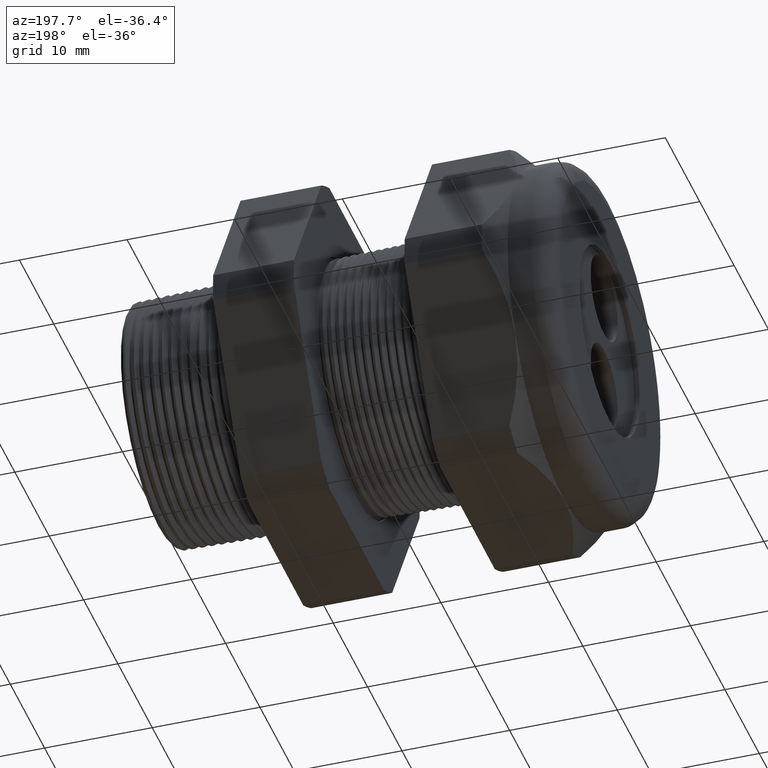
[diagram: clean part render]
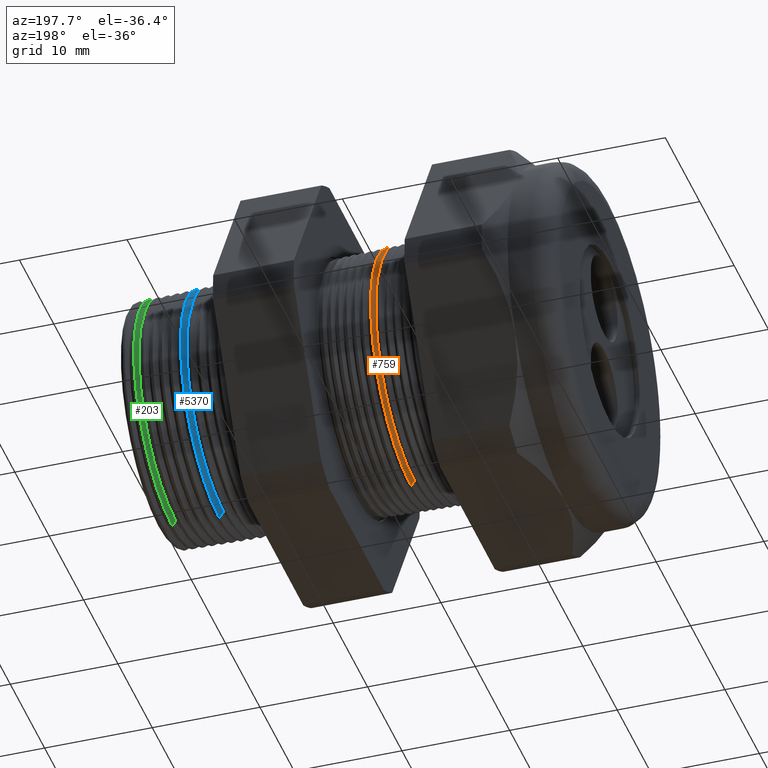
[diagram: same view with three faces highlighted in distinct colors, each labeled with its STEP entity id]
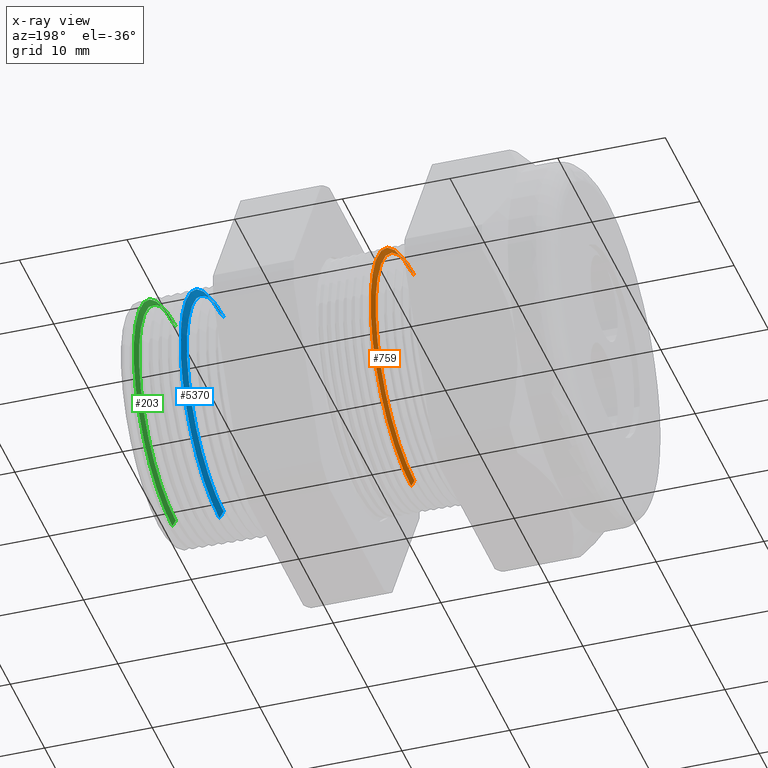
[diagram: x-ray of the same camera — body ghosted, the three highlighted faces saturated]
A machine part, auxiliary view with three faces highlighted in distinct colors.
The next image is the same camera in x-ray (body ghosted, the three faces saturated) — at least one of them is partly hidden behind the body in this view.
Their STEP definitions:

[orange] entity #759 — the highlighted conical surface has half-angle 58.5 deg.
#705 = EDGE_LOOP ( 'NONE', ( #760, #764, #767, #770 ) ) ;
#759 = ADVANCED_FACE ( 'NONE', ( #2559 ), #2558, .T. ) ;
#760 = ORIENTED_EDGE ( 'NONE', *, *, #761, .T. ) ;
#761 = EDGE_CURVE ( 'NONE', #762, #763, #2557, .T. ) ;
#762 = VERTEX_POINT ( 'NONE', #2548 ) ;
#763 = VERTEX_POINT ( 'NONE', #2547 ) ;
#764 = ORIENTED_EDGE ( 'NONE', *, *, #765, .T. ) ;
#765 = EDGE_CURVE ( 'NONE', #763, #766, #2546, .T. ) ;
#766 = VERTEX_POINT ( 'NONE', #2542 ) ;
#767 = ORIENTED_EDGE ( 'NONE', *, *, #768, .T. ) ;
#768 = EDGE_CURVE ( 'NONE', #766, #769, #2541, .T. ) ;
#769 = VERTEX_POINT ( 'NONE', #2536 ) ;
#770 = ORIENTED_EDGE ( 'NONE', *, *, #771, .F. ) ;
#771 = EDGE_CURVE ( 'NONE', #762, #769, #2535, .T. ) ;
#2532 = DIRECTION ( 'NONE',  ( 0.5224985647159348100, 0.0000000000000000000, -0.8526401643541007300 ) ) ;
#2533 = VECTOR ( 'NONE', #2532, 39.37007874015748900 ) ;
#2534 = CARTESIAN_POINT ( 'NONE',  ( -0.8165405736958172300, 0.0000000000000000000, -0.4446307351718083400 ) ) ;
#2535 = LINE ( 'NONE', #2534, #2533 ) ;
#2536 = CARTESIAN_POINT ( 'NONE',  ( -0.8043001372766740400, 5.689774081997992500E-017, -0.4646053119935833500 ) ) ;
#2537 = DIRECTION ( 'NONE',  ( 0.0000000000000000000, 0.0000000000000000000, -1.000000000000000000 ) ) ;
#2538 = DIRECTION ( 'NONE',  ( -1.000000000000000000, 0.0000000000000000000, 0.0000000000000000000 ) ) ;
#2539 = CARTESIAN_POINT ( 'NONE',  ( -0.8043001372766740400, 0.0000000000000000000, 0.0000000000000000000 ) ) ;
#2540 = AXIS2_PLACEMENT_3D ( 'NONE', #2539, #2538, #2537 ) ;
#2541 = CIRCLE ( 'NONE', #2540, 0.4646053119935832900 ) ;
#2542 = CARTESIAN_POINT ( 'NONE',  ( -0.8043001372766740400, 0.0000000000000000000, 0.4646053119935833500 ) ) ;
#2543 = DIRECTION ( 'NONE',  ( 0.5224985647159348100, 1.044183048100722500E-016, 0.8526401643541007300 ) ) ;
#2544 = VECTOR ( 'NONE', #2543, 39.37007874015748900 ) ;
#2545 = CARTESIAN_POINT ( 'NONE',  ( -0.8165405736958172300, 5.445156066306895900E-017, 0.4446307351718083400 ) ) ;
#2546 = LINE ( 'NONE', #2545, #2544 ) ;
#2547 = CARTESIAN_POINT ( 'NONE',  ( -0.8165405736958172300, 0.0000000000000000000, 0.4446307351718083400 ) ) ;
#2548 = CARTESIAN_POINT ( 'NONE',  ( -0.8165405736958172300, 5.571220089116329200E-017, -0.4446307351718083400 ) ) ;
#2549 = DIRECTION ( 'NONE',  ( 0.0000000000000000000, 0.0000000000000000000, -1.000000000000000000 ) ) ;
#2550 = DIRECTION ( 'NONE',  ( 1.000000000000000000, 0.0000000000000000000, 0.0000000000000000000 ) ) ;
#2551 = CARTESIAN_POINT ( 'NONE',  ( -0.8165405736958172300, 0.0000000000000000000, 0.0000000000000000000 ) ) ;
#2552 = AXIS2_PLACEMENT_3D ( 'NONE', #2551, #2550, #2549 ) ;
#2553 = DIRECTION ( 'NONE',  ( 0.0000000000000000000, 0.0000000000000000000, -1.000000000000000000 ) ) ;
#2554 = DIRECTION ( 'NONE',  ( 1.000000000000000000, 0.0000000000000000000, 0.0000000000000000000 ) ) ;
#2555 = CARTESIAN_POINT ( 'NONE',  ( -0.8165405736958172300, 0.0000000000000000000, 0.0000000000000000000 ) ) ;
#2556 = AXIS2_PLACEMENT_3D ( 'NONE', #2555, #2554, #2553 ) ;
#2557 = CIRCLE ( 'NONE', #2552, 0.4446307351718083400 ) ;
#2558 = CONICAL_SURFACE ( 'NONE', #2556, 0.4446307351718083400, 1.021017612416699200 ) ;
#2559 = FACE_OUTER_BOUND ( 'NONE', #705, .T. ) ;

[blue] entity #5370 — the highlighted conical surface has half-angle 58.5 deg.
#40 = VERTEX_POINT ( 'NONE', #1440 ) ;
#94 = EDGE_CURVE ( 'NONE', #5545, #103, #1524, .T. ) ;
#103 = VERTEX_POINT ( 'NONE', #1574 ) ;
#1440 = CARTESIAN_POINT ( 'NONE',  ( -0.1184707356790752100, 5.316384437367407500E-017, -0.4212184895733915900 ) ) ;
#1521 = DIRECTION ( 'NONE',  ( 0.5224985647159347000, 1.044183048100722800E-016, 0.8526401643541008400 ) ) ;
#1522 = VECTOR ( 'NONE', #1521, 39.37007874015748100 ) ;
#1523 = CARTESIAN_POINT ( 'NONE',  ( -0.1184707356790752100, 5.158438749977368000E-017, 0.4212184895733915900 ) ) ;
#1524 = LINE ( 'NONE', #1523, #1522 ) ;
#1574 = CARTESIAN_POINT ( 'NONE',  ( -0.1031346857808554700, 0.0000000000000000000, 0.4462446484736953300 ) ) ;
#4311 = CARTESIAN_POINT ( 'NONE',  ( -0.1031346857808554700, 5.464920803899467900E-017, -0.4462446484736953300 ) ) ;
#4370 = DIRECTION ( 'NONE',  ( 0.0000000000000000000, 0.0000000000000000000, -1.000000000000000000 ) ) ;
#4371 = DIRECTION ( 'NONE',  ( 1.000000000000000000, 0.0000000000000000000, 0.0000000000000000000 ) ) ;
#4372 = AXIS2_PLACEMENT_3D ( 'NONE', #4375, #4371, #4370 ) ;
#4373 = CONICAL_SURFACE ( 'NONE', #4372, 0.4212184895733915900, 1.021017612416699400 ) ;
#4374 = CIRCLE ( 'NONE', #4437, 0.4212184895733915900 ) ;
#4375 = CARTESIAN_POINT ( 'NONE',  ( -0.1184707356790752100, 0.0000000000000000000, 0.0000000000000000000 ) ) ;
#4376 = FACE_OUTER_BOUND ( 'NONE', #5378, .T. ) ;
#4434 = DIRECTION ( 'NONE',  ( 0.0000000000000000000, 0.0000000000000000000, -1.000000000000000000 ) ) ;
#4435 = DIRECTION ( 'NONE',  ( 1.000000000000000000, 0.0000000000000000000, 0.0000000000000000000 ) ) ;
#4436 = CARTESIAN_POINT ( 'NONE',  ( -0.1184707356790752100, 0.0000000000000000000, 0.0000000000000000000 ) ) ;
#4437 = AXIS2_PLACEMENT_3D ( 'NONE', #4436, #4435, #4434 ) ;
#4768 = CARTESIAN_POINT ( 'NONE',  ( -0.1184707356790752100, 0.0000000000000000000, 0.4212184895733915900 ) ) ;
#4788 = DIRECTION ( 'NONE',  ( 0.5224985647159347000, 0.0000000000000000000, -0.8526401643541008400 ) ) ;
#4789 = VECTOR ( 'NONE', #4788, 39.37007874015748100 ) ;
#4790 = CARTESIAN_POINT ( 'NONE',  ( -0.1184707356790752100, 0.0000000000000000000, -0.4212184895733915900 ) ) ;
#4791 = LINE ( 'NONE', #4790, #4789 ) ;
#4827 = DIRECTION ( 'NONE',  ( 0.0000000000000000000, 0.0000000000000000000, -1.000000000000000000 ) ) ;
#4828 = DIRECTION ( 'NONE',  ( -1.000000000000000000, 0.0000000000000000000, 0.0000000000000000000 ) ) ;
#4829 = CARTESIAN_POINT ( 'NONE',  ( -0.1031346857808554700, 0.0000000000000000000, 0.0000000000000000000 ) ) ;
#4830 = AXIS2_PLACEMENT_3D ( 'NONE', #4829, #4828, #4827 ) ;
#4831 = CIRCLE ( 'NONE', #4830, 0.4462446484736953300 ) ;
#5315 = ORIENTED_EDGE ( 'NONE', *, *, #5595, .T. ) ;
#5349 = VERTEX_POINT ( 'NONE', #4311 ) ;
#5370 = ADVANCED_FACE ( 'NONE', ( #4376 ), #4373, .T. ) ;
#5371 = EDGE_CURVE ( 'NONE', #40, #5545, #4374, .T. ) ;
#5375 = ORIENTED_EDGE ( 'NONE', *, *, #5568, .F. ) ;
#5378 = EDGE_LOOP ( 'NONE', ( #5382, #5390, #5315, #5375 ) ) ;
#5382 = ORIENTED_EDGE ( 'NONE', *, *, #5371, .T. ) ;
#5390 = ORIENTED_EDGE ( 'NONE', *, *, #94, .T. ) ;
#5545 = VERTEX_POINT ( 'NONE', #4768 ) ;
#5568 = EDGE_CURVE ( 'NONE', #40, #5349, #4791, .T. ) ;
#5595 = EDGE_CURVE ( 'NONE', #103, #5349, #4831, .T. ) ;

[green] entity #203 — the highlighted conical surface has half-angle 58.5 deg.
#135 = VERTEX_POINT ( 'NONE', #1631 ) ;
#190 = EDGE_CURVE ( 'NONE', #211, #135, #1716, .T. ) ;
#191 = ORIENTED_EDGE ( 'NONE', *, *, #192, .F. ) ;
#192 = EDGE_CURVE ( 'NONE', #207, #135, #1712, .T. ) ;
#203 = ADVANCED_FACE ( 'NONE', ( #1754 ), #1753, .T. ) ;
#204 = EDGE_LOOP ( 'NONE', ( #205, #209, #212, #191 ) ) ;
#205 = ORIENTED_EDGE ( 'NONE', *, *, #206, .T. ) ;
#206 = EDGE_CURVE ( 'NONE', #207, #208, #1747, .T. ) ;
#207 = VERTEX_POINT ( 'NONE', #1743 ) ;
#208 = VERTEX_POINT ( 'NONE', #1742 ) ;
#209 = ORIENTED_EDGE ( 'NONE', *, *, #210, .T. ) ;
#210 = EDGE_CURVE ( 'NONE', #208, #211, #1741, .T. ) ;
#211 = VERTEX_POINT ( 'NONE', #1737 ) ;
#212 = ORIENTED_EDGE ( 'NONE', *, *, #190, .T. ) ;
#1631 = CARTESIAN_POINT ( 'NONE',  ( 0.06910148289796844100, 5.409687239479051700E-017, -0.4417344856692956300 ) ) ;
#1709 = DIRECTION ( 'NONE',  ( 0.5224985647159347000, 0.0000000000000000000, -0.8526401643541008400 ) ) ;
#1710 = VECTOR ( 'NONE', #1709, 39.37007874015748100 ) ;
#1711 = CARTESIAN_POINT ( 'NONE',  ( 0.05652926432092481000, 0.0000000000000000000, -0.4212184895733915900 ) ) ;
#1712 = LINE ( 'NONE', #1711, #1710 ) ;
#1713 = DIRECTION ( 'NONE',  ( 0.0000000000000000000, 0.0000000000000000000, -1.000000000000000000 ) ) ;
#1714 = DIRECTION ( 'NONE',  ( -1.000000000000000000, 0.0000000000000000000, 0.0000000000000000000 ) ) ;
#1715 = AXIS2_PLACEMENT_3D ( 'NONE', #1722, #1714, #1713 ) ;
#1716 = CIRCLE ( 'NONE', #1715, 0.4417344856692956300 ) ;
#1722 = CARTESIAN_POINT ( 'NONE',  ( 0.06910148289796844100, 0.0000000000000000000, 0.0000000000000000000 ) ) ;
#1737 = CARTESIAN_POINT ( 'NONE',  ( 0.06910148289796844100, 0.0000000000000000000, 0.4417344856692956300 ) ) ;
#1738 = DIRECTION ( 'NONE',  ( 0.5224985647159347000, 1.044183048100722800E-016, 0.8526401643541008400 ) ) ;
#1739 = VECTOR ( 'NONE', #1738, 39.37007874015748100 ) ;
#1740 = CARTESIAN_POINT ( 'NONE',  ( 0.05652926432092481000, 5.158438749977368000E-017, 0.4212184895733915900 ) ) ;
#1741 = LINE ( 'NONE', #1740, #1739 ) ;
#1742 = CARTESIAN_POINT ( 'NONE',  ( 0.05652926432092481000, 0.0000000000000000000, 0.4212184895733915900 ) ) ;
#1743 = CARTESIAN_POINT ( 'NONE',  ( 0.05652926432092481000, 5.287919790946048300E-017, -0.4212184895733915900 ) ) ;
#1744 = DIRECTION ( 'NONE',  ( 0.0000000000000000000, 0.0000000000000000000, -1.000000000000000000 ) ) ;
#1745 = DIRECTION ( 'NONE',  ( 1.000000000000000000, 0.0000000000000000000, 0.0000000000000000000 ) ) ;
#1746 = AXIS2_PLACEMENT_3D ( 'NONE', #1752, #1745, #1744 ) ;
#1747 = CIRCLE ( 'NONE', #1746, 0.4212184895733915900 ) ;
#1748 = DIRECTION ( 'NONE',  ( 0.0000000000000000000, 0.0000000000000000000, -1.000000000000000000 ) ) ;
#1749 = DIRECTION ( 'NONE',  ( 1.000000000000000000, 0.0000000000000000000, 0.0000000000000000000 ) ) ;
#1750 = CARTESIAN_POINT ( 'NONE',  ( 0.05652926432092481000, 0.0000000000000000000, 0.0000000000000000000 ) ) ;
#1751 = AXIS2_PLACEMENT_3D ( 'NONE', #1750, #1749, #1748 ) ;
#1752 = CARTESIAN_POINT ( 'NONE',  ( 0.05652926432092481000, 0.0000000000000000000, 0.0000000000000000000 ) ) ;
#1753 = CONICAL_SURFACE ( 'NONE', #1751, 0.4212184895733915900, 1.021017612416699400 ) ;
#1754 = FACE_OUTER_BOUND ( 'NONE', #204, .T. ) ;